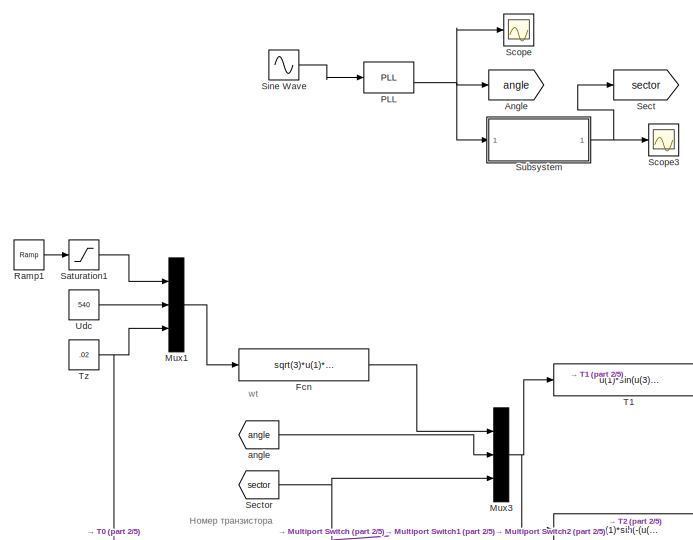
[diagram: root canvas - part 1/5, top left region]
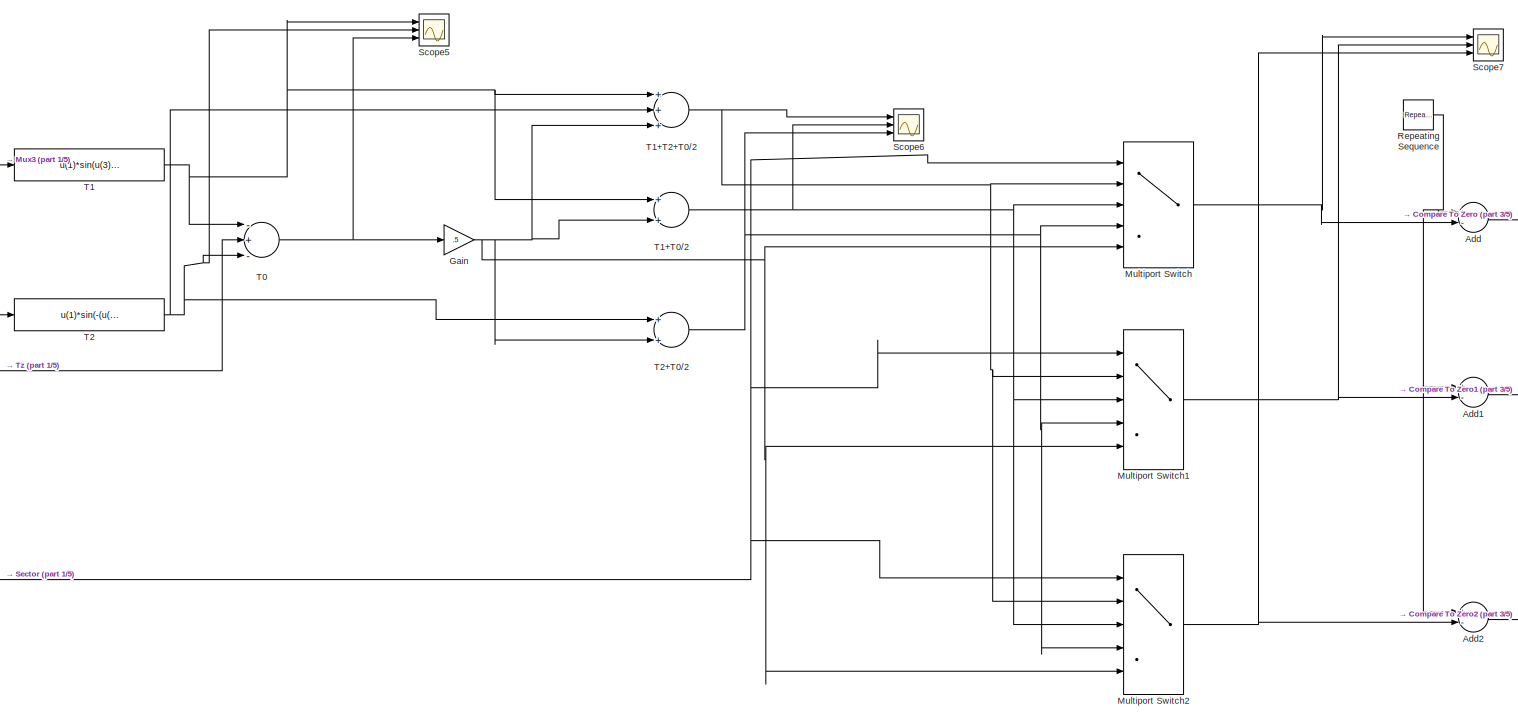
[diagram: root canvas - part 2/5, top center region]
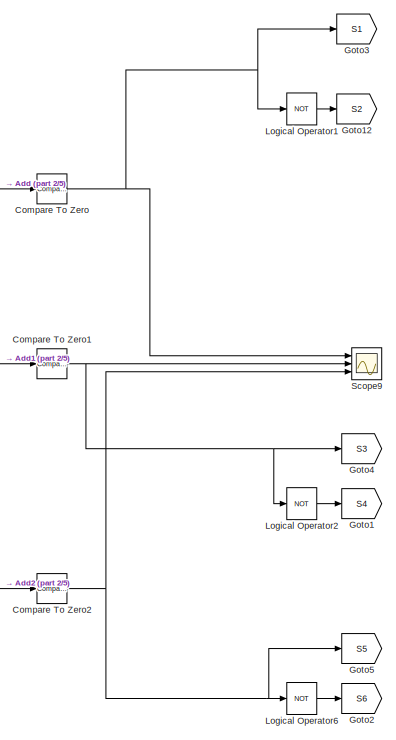
[diagram: root canvas - part 3/5, top right region]
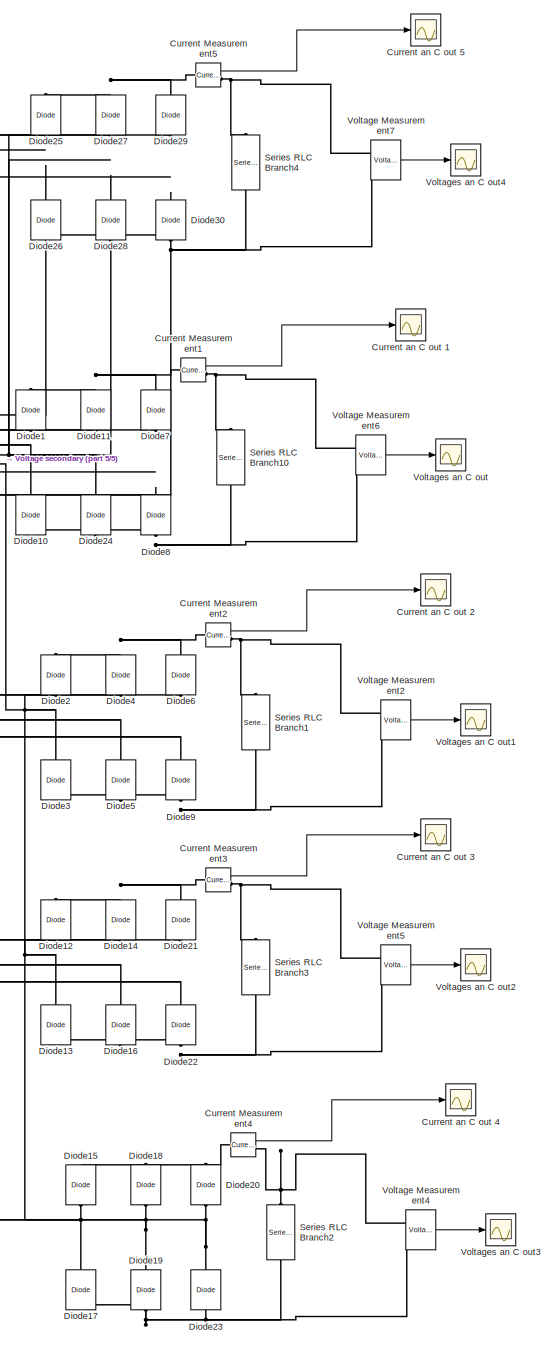
[diagram: root canvas - part 4/5, bottom right region]
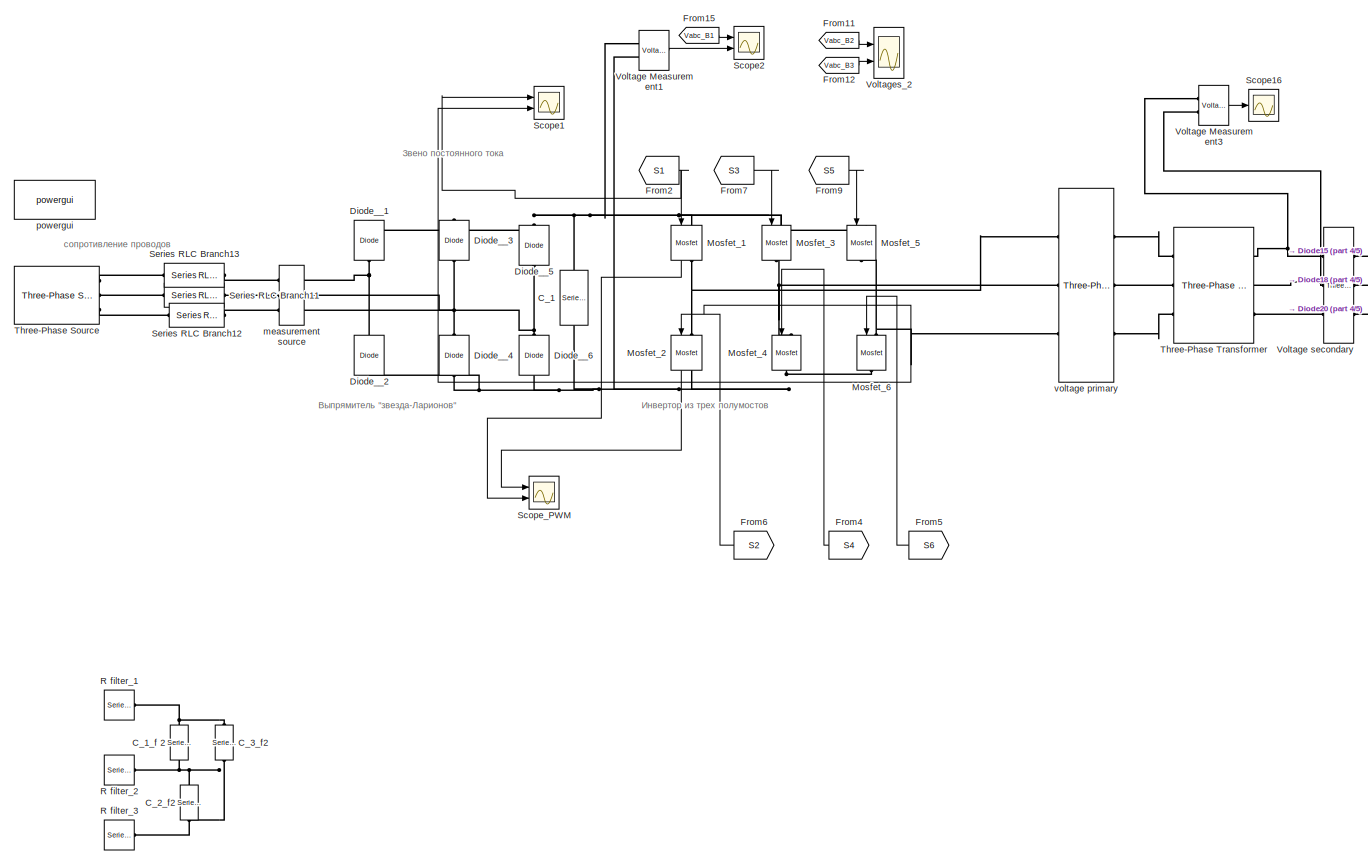
[diagram: root canvas - part 5/5, bottom center region]
MODEL slx_545048bfb73f
KIND model
CONFIG AbsTol = auto
CONFIG EnableMultiTasking = off
CONFIG FixedStep = auto
CONFIG MaxStep = 0.01
CONFIG MinStep = auto
CONFIG RelTol = 1e-3
CONFIG SampleTimeConstraint = Unconstrained
CONFIG Solver = VariableStepAuto
CONFIG SolverName = VariableStepAuto
CONFIG StartTime = 0.0
CONFIG StopTime = 5
BLOCK [Sum] Add
  InputSameDT = off
  Inputs = +-
  OutDataTypeStr = Inherit: Inherit via internal rule
  Ports = [2, 1]
  SaturateOnIntegerOverflow = off
BLOCK [Sum] Add1
  InputSameDT = off
  Inputs = +-
  OutDataTypeStr = Inherit: Inherit via internal rule
  Ports = [2, 1]
  SaturateOnIntegerOverflow = off
BLOCK [Sum] Add2
  InputSameDT = off
  Inputs = +-
  OutDataTypeStr = Inherit: Inherit via internal rule
  Ports = [2, 1]
  SaturateOnIntegerOverflow = off
BLOCK [Goto] Angle
  GotoTag = angle
BLOCK [Reference] C_1  REF=powerlib/Elements/Series RLC Branch
  Ports = [0, 0, 0, 0, 0, 1, 1]
  SourceBlock = powerlib/Elements/Series RLC Branch
  SourceProductBaseCode = PS
  SourceProductName = Simscape Power Systems
  SourceType = Series RLC Branch
BLOCK [Reference] C_1_f 2  REF=powerlib/Elements/Series RLC Branch
  Commented = on
  Ports = [0, 0, 0, 0, 0, 1, 1]
  SourceBlock = powerlib/Elements/Series RLC Branch
  SourceProductBaseCode = PS
  SourceProductName = Simscape Power Systems
  SourceType = Series RLC Branch
BLOCK [Reference] C_2_f2  REF=powerlib/Elements/Series RLC Branch
  Commented = on
  Ports = [0, 0, 0, 0, 0, 1, 1]
  SourceBlock = powerlib/Elements/Series RLC Branch
  SourceProductBaseCode = PS
  SourceProductName = Simscape Power Systems
  SourceType = Series RLC Branch
BLOCK [Reference] C_3_f2  REF=powerlib/Elements/Series RLC Branch
  Commented = on
  Ports = [0, 0, 0, 0, 0, 1, 1]
  SourceBlock = powerlib/Elements/Series RLC Branch
  SourceProductBaseCode = PS
  SourceProductName = Simscape Power Systems
  SourceType = Series RLC Branch
BLOCK [Reference] Compare To Zero  REF=simulink/Logic and Bit
Operations/Compare
To Zero
  Ports = [1, 1]
  SourceBlock = simulink/Logic and Bit\nOperations/Compare\nTo Zero
  SourceProductBaseCode = SL
  SourceProductName = Simulink
  SourceType = Compare To Zero
BLOCK [Reference] Compare To Zero1  REF=simulink/Logic and Bit
Operations/Compare
To Zero
  Ports = [1, 1]
  SourceBlock = simulink/Logic and Bit\nOperations/Compare\nTo Zero
  SourceProductBaseCode = SL
  SourceProductName = Simulink
  SourceType = Compare To Zero
BLOCK [Reference] Compare To Zero2  REF=simulink/Logic and Bit
Operations/Compare
To Zero
  Ports = [1, 1]
  SourceBlock = simulink/Logic and Bit\nOperations/Compare\nTo Zero
  SourceProductBaseCode = SL
  SourceProductName = Simulink
  SourceType = Compare To Zero
BLOCK [Reference] Current Measurement1  REF=powerlib/Measurements/Current Measurement
  Ports = [0, 1, 0, 0, 0, 1, 1]
  SourceBlock = powerlib/Measurements/Current Measurement
  SourceProductBaseCode = PS
  SourceProductName = Simscape Power Systems
  SourceType = Current Measurement
  UserDataPersistent = on
BLOCK [Reference] Current Measurement2  REF=powerlib/Measurements/Current Measurement
  Ports = [0, 1, 0, 0, 0, 1, 1]
  SourceBlock = powerlib/Measurements/Current Measurement
  SourceProductBaseCode = PS
  SourceProductName = Simscape Power Systems
  SourceType = Current Measurement
  UserDataPersistent = on
BLOCK [Reference] Current Measurement3  REF=powerlib/Measurements/Current Measurement
  Ports = [0, 1, 0, 0, 0, 1, 1]
  SourceBlock = powerlib/Measurements/Current Measurement
  SourceProductBaseCode = PS
  SourceProductName = Simscape Power Systems
  SourceType = Current Measurement
  UserDataPersistent = on
BLOCK [Reference] Current Measurement4  REF=powerlib/Measurements/Current Measurement
  Ports = [0, 1, 0, 0, 0, 1, 1]
  SourceBlock = powerlib/Measurements/Current Measurement
  SourceProductBaseCode = PS
  SourceProductName = Simscape Power Systems
  SourceType = Current Measurement
  UserDataPersistent = on
BLOCK [Reference] Current Measurement5  REF=powerlib/Measurements/Current Measurement
  Ports = [0, 1, 0, 0, 0, 1, 1]
  SourceBlock = powerlib/Measurements/Current Measurement
  SourceProductBaseCode = PS
  SourceProductName = Simscape Power Systems
  SourceType = Current Measurement
  UserDataPersistent = on
BLOCK [Scope] Current an C out 1
  Floating = off
  NumInputPorts = 1
  Ports = [1]
  ScopeSpecificationString = Simulink.scopes.TimeScopeBlockCfg('CurrentConfiguration', extmgr.ConfigurationSet(extmgr.Configuration('Core','General UI',true),extmgr.Configuration('Core','Source UI',true),extmgr.Configuration('Sources','WiredSimulink',true,'DataLoggingVariableName','ScopeData1'),extmgr.Configuration('Visuals','Time Domain',true,'SerializedDisplays',{struct('MinYLimReal','-0.74535','MaxYLimReal','6.7078','YLabe...<+1446ch>
BLOCK [Scope] Current an C out 2
  Floating = off
  NumInputPorts = 1
  Ports = [1]
  ScopeSpecificationString = Simulink.scopes.TimeScopeBlockCfg('CurrentConfiguration', extmgr.ConfigurationSet(extmgr.Configuration('Core','General UI',true),extmgr.Configuration('Core','Source UI',true),extmgr.Configuration('Sources','WiredSimulink',true,'DataLoggingVariableName','ScopeData2'),extmgr.Configuration('Visuals','Time Domain',true,'SerializedDisplays',{struct('MinYLimReal','-0.76683','MaxYLimReal','7.03002','YLab...<+1450ch>
BLOCK [Scope] Current an C out 3
  Floating = off
  NumInputPorts = 1
  Ports = [1]
  ScopeSpecificationString = Simulink.scopes.TimeScopeBlockCfg('CurrentConfiguration', extmgr.ConfigurationSet(extmgr.Configuration('Core','General UI',true),extmgr.Configuration('Core','Source UI',true),extmgr.Configuration('Sources','WiredSimulink',true,'DataLoggingVariableName','ScopeData4'),extmgr.Configuration('Visuals','Time Domain',true,'SerializedDisplays',{struct('MinYLimReal','-2.56938','MaxYLimReal','23.12202','YLa...<+1480ch>
BLOCK [Scope] Current an C out 4
  Floating = off
  NumInputPorts = 1
  Ports = [1]
  ScopeSpecificationString = Simulink.scopes.TimeScopeBlockCfg('CurrentConfiguration', extmgr.ConfigurationSet(extmgr.Configuration('Core','General UI',true),extmgr.Configuration('Core','Source UI',true),extmgr.Configuration('Sources','WiredSimulink',true,'DataLoggingVariableName','ScopeData5'),extmgr.Configuration('Visuals','Time Domain',true,'SerializedDisplays',{struct('MinYLimReal','-2.56938','MaxYLimReal','23.12202','YLa...<+1480ch>
BLOCK [Scope] Current an C out 5
  Floating = off
  NumInputPorts = 1
  Ports = [1]
  ScopeSpecificationString = Simulink.scopes.TimeScopeBlockCfg('CurrentConfiguration', extmgr.ConfigurationSet(extmgr.Configuration('Core','General UI',true),extmgr.Configuration('Core','Source UI',true),extmgr.Configuration('Sources','WiredSimulink',true,'DataLoggingVariableName','ScopeData8'),extmgr.Configuration('Visuals','Time Domain',true,'SerializedDisplays',{struct('MinYLimReal','-2.56938','MaxYLimReal','23.12202','YLa...<+1480ch>
BLOCK [Reference] Diode1  REF=powerlib/Power
Electronics/Diode
  Ports = [0, 0, 0, 0, 0, 1, 1]
  SourceBlock = powerlib/Power\nElectronics/Diode
  SourceProductBaseCode = PS
  SourceProductName = Simscape Power Systems
  SourceType = Diode
BLOCK [Reference] Diode10  REF=powerlib/Power
Electronics/Diode
  Ports = [0, 0, 0, 0, 0, 1, 1]
  SourceBlock = powerlib/Power\nElectronics/Diode
  SourceProductBaseCode = PS
  SourceProductName = Simscape Power Systems
  SourceType = Diode
BLOCK [Reference] Diode11  REF=powerlib/Power
Electronics/Diode
  Ports = [0, 0, 0, 0, 0, 1, 1]
  SourceBlock = powerlib/Power\nElectronics/Diode
  SourceProductBaseCode = PS
  SourceProductName = Simscape Power Systems
  SourceType = Diode
BLOCK [Reference] Diode12  REF=powerlib/Power
Electronics/Diode
  Ports = [0, 0, 0, 0, 0, 1, 1]
  SourceBlock = powerlib/Power\nElectronics/Diode
  SourceProductBaseCode = PS
  SourceProductName = Simscape Power Systems
  SourceType = Diode
BLOCK [Reference] Diode13  REF=powerlib/Power
Electronics/Diode
  Ports = [0, 0, 0, 0, 0, 1, 1]
  SourceBlock = powerlib/Power\nElectronics/Diode
  SourceProductBaseCode = PS
  SourceProductName = Simscape Power Systems
  SourceType = Diode
BLOCK [Reference] Diode14  REF=powerlib/Power
Electronics/Diode
  Ports = [0, 0, 0, 0, 0, 1, 1]
  SourceBlock = powerlib/Power\nElectronics/Diode
  SourceProductBaseCode = PS
  SourceProductName = Simscape Power Systems
  SourceType = Diode
BLOCK [Reference] Diode15  REF=powerlib/Power
Electronics/Diode
  Ports = [0, 0, 0, 0, 0, 1, 1]
  SourceBlock = powerlib/Power\nElectronics/Diode
  SourceProductBaseCode = PS
  SourceProductName = Simscape Power Systems
  SourceType = Diode
BLOCK [Reference] Diode16  REF=powerlib/Power
Electronics/Diode
  Ports = [0, 0, 0, 0, 0, 1, 1]
  SourceBlock = powerlib/Power\nElectronics/Diode
  SourceProductBaseCode = PS
  SourceProductName = Simscape Power Systems
  SourceType = Diode
BLOCK [Reference] Diode17  REF=powerlib/Power
Electronics/Diode
  Ports = [0, 0, 0, 0, 0, 1, 1]
  SourceBlock = powerlib/Power\nElectronics/Diode
  SourceProductBaseCode = PS
  SourceProductName = Simscape Power Systems
  SourceType = Diode
BLOCK [Reference] Diode18  REF=powerlib/Power
Electronics/Diode
  Ports = [0, 0, 0, 0, 0, 1, 1]
  SourceBlock = powerlib/Power\nElectronics/Diode
  SourceProductBaseCode = PS
  SourceProductName = Simscape Power Systems
  SourceType = Diode
BLOCK [Reference] Diode19  REF=powerlib/Power
Electronics/Diode
  Ports = [0, 0, 0, 0, 0, 1, 1]
  SourceBlock = powerlib/Power\nElectronics/Diode
  SourceProductBaseCode = PS
  SourceProductName = Simscape Power Systems
  SourceType = Diode
BLOCK [Reference] Diode2  REF=powerlib/Power
Electronics/Diode
  Ports = [0, 0, 0, 0, 0, 1, 1]
  SourceBlock = powerlib/Power\nElectronics/Diode
  SourceProductBaseCode = PS
  SourceProductName = Simscape Power Systems
  SourceType = Diode
BLOCK [Reference] Diode20  REF=powerlib/Power
Electronics/Diode
  Ports = [0, 0, 0, 0, 0, 1, 1]
  SourceBlock = powerlib/Power\nElectronics/Diode
  SourceProductBaseCode = PS
  SourceProductName = Simscape Power Systems
  SourceType = Diode
BLOCK [Reference] Diode21  REF=powerlib/Power
Electronics/Diode
  Ports = [0, 0, 0, 0, 0, 1, 1]
  SourceBlock = powerlib/Power\nElectronics/Diode
  SourceProductBaseCode = PS
  SourceProductName = Simscape Power Systems
  SourceType = Diode
BLOCK [Reference] Diode22  REF=powerlib/Power
Electronics/Diode
  Ports = [0, 0, 0, 0, 0, 1, 1]
  SourceBlock = powerlib/Power\nElectronics/Diode
  SourceProductBaseCode = PS
  SourceProductName = Simscape Power Systems
  SourceType = Diode
BLOCK [Reference] Diode23  REF=powerlib/Power
Electronics/Diode
  Ports = [0, 0, 0, 0, 0, 1, 1]
  SourceBlock = powerlib/Power\nElectronics/Diode
  SourceProductBaseCode = PS
  SourceProductName = Simscape Power Systems
  SourceType = Diode
BLOCK [Reference] Diode24  REF=powerlib/Power
Electronics/Diode
  Ports = [0, 0, 0, 0, 0, 1, 1]
  SourceBlock = powerlib/Power\nElectronics/Diode
  SourceProductBaseCode = PS
  SourceProductName = Simscape Power Systems
  SourceType = Diode
BLOCK [Reference] Diode25  REF=powerlib/Power
Electronics/Diode
  Ports = [0, 0, 0, 0, 0, 1, 1]
  SourceBlock = powerlib/Power\nElectronics/Diode
  SourceProductBaseCode = PS
  SourceProductName = Simscape Power Systems
  SourceType = Diode
BLOCK [Reference] Diode26  REF=powerlib/Power
Electronics/Diode
  Ports = [0, 0, 0, 0, 0, 1, 1]
  SourceBlock = powerlib/Power\nElectronics/Diode
  SourceProductBaseCode = PS
  SourceProductName = Simscape Power Systems
  SourceType = Diode
BLOCK [Reference] Diode27  REF=powerlib/Power
Electronics/Diode
  Ports = [0, 0, 0, 0, 0, 1, 1]
  SourceBlock = powerlib/Power\nElectronics/Diode
  SourceProductBaseCode = PS
  SourceProductName = Simscape Power Systems
  SourceType = Diode
BLOCK [Reference] Diode28  REF=powerlib/Power
Electronics/Diode
  Ports = [0, 0, 0, 0, 0, 1, 1]
  SourceBlock = powerlib/Power\nElectronics/Diode
  SourceProductBaseCode = PS
  SourceProductName = Simscape Power Systems
  SourceType = Diode
BLOCK [Reference] Diode29  REF=powerlib/Power
Electronics/Diode
  Ports = [0, 0, 0, 0, 0, 1, 1]
  SourceBlock = powerlib/Power\nElectronics/Diode
  SourceProductBaseCode = PS
  SourceProductName = Simscape Power Systems
  SourceType = Diode
BLOCK [Reference] Diode3  REF=powerlib/Power
Electronics/Diode
  Ports = [0, 0, 0, 0, 0, 1, 1]
  SourceBlock = powerlib/Power\nElectronics/Diode
  SourceProductBaseCode = PS
  SourceProductName = Simscape Power Systems
  SourceType = Diode
BLOCK [Reference] Diode30  REF=powerlib/Power
Electronics/Diode
  Ports = [0, 0, 0, 0, 0, 1, 1]
  SourceBlock = powerlib/Power\nElectronics/Diode
  SourceProductBaseCode = PS
  SourceProductName = Simscape Power Systems
  SourceType = Diode
BLOCK [Reference] Diode4  REF=powerlib/Power
Electronics/Diode
  Ports = [0, 0, 0, 0, 0, 1, 1]
  SourceBlock = powerlib/Power\nElectronics/Diode
  SourceProductBaseCode = PS
  SourceProductName = Simscape Power Systems
  SourceType = Diode
BLOCK [Reference] Diode5  REF=powerlib/Power
Electronics/Diode
  Ports = [0, 0, 0, 0, 0, 1, 1]
  SourceBlock = powerlib/Power\nElectronics/Diode
  SourceProductBaseCode = PS
  SourceProductName = Simscape Power Systems
  SourceType = Diode
BLOCK [Reference] Diode6  REF=powerlib/Power
Electronics/Diode
  Ports = [0, 0, 0, 0, 0, 1, 1]
  SourceBlock = powerlib/Power\nElectronics/Diode
  SourceProductBaseCode = PS
  SourceProductName = Simscape Power Systems
  SourceType = Diode
BLOCK [Reference] Diode7  REF=powerlib/Power
Electronics/Diode
  Ports = [0, 0, 0, 0, 0, 1, 1]
  SourceBlock = powerlib/Power\nElectronics/Diode
  SourceProductBaseCode = PS
  SourceProductName = Simscape Power Systems
  SourceType = Diode
BLOCK [Reference] Diode8  REF=powerlib/Power
Electronics/Diode
  Ports = [0, 0, 0, 0, 0, 1, 1]
  SourceBlock = powerlib/Power\nElectronics/Diode
  SourceProductBaseCode = PS
  SourceProductName = Simscape Power Systems
  SourceType = Diode
BLOCK [Reference] Diode9  REF=powerlib/Power
Electronics/Diode
  Ports = [0, 0, 0, 0, 0, 1, 1]
  SourceBlock = powerlib/Power\nElectronics/Diode
  SourceProductBaseCode = PS
  SourceProductName = Simscape Power Systems
  SourceType = Diode
BLOCK [Reference] Diode__1  REF=powerlib/Power
Electronics/Diode
  Ports = [0, 0, 0, 0, 0, 1, 1]
  SourceBlock = powerlib/Power\nElectronics/Diode
  SourceProductBaseCode = PS
  SourceProductName = Simscape Power Systems
  SourceType = Diode
BLOCK [Reference] Diode__2  REF=powerlib/Power
Electronics/Diode
  Ports = [0, 0, 0, 0, 0, 1, 1]
  SourceBlock = powerlib/Power\nElectronics/Diode
  SourceProductBaseCode = PS
  SourceProductName = Simscape Power Systems
  SourceType = Diode
BLOCK [Reference] Diode__3  REF=powerlib/Power
Electronics/Diode
  Ports = [0, 0, 0, 0, 0, 1, 1]
  SourceBlock = powerlib/Power\nElectronics/Diode
  SourceProductBaseCode = PS
  SourceProductName = Simscape Power Systems
  SourceType = Diode
BLOCK [Reference] Diode__4  REF=powerlib/Power
Electronics/Diode
  Ports = [0, 0, 0, 0, 0, 1, 1]
  SourceBlock = powerlib/Power\nElectronics/Diode
  SourceProductBaseCode = PS
  SourceProductName = Simscape Power Systems
  SourceType = Diode
BLOCK [Reference] Diode__5  REF=powerlib/Power
Electronics/Diode
  Ports = [0, 0, 0, 0, 0, 1, 1]
  SourceBlock = powerlib/Power\nElectronics/Diode
  SourceProductBaseCode = PS
  SourceProductName = Simscape Power Systems
  SourceType = Diode
BLOCK [Reference] Diode__6  REF=powerlib/Power
Electronics/Diode
  Ports = [0, 0, 0, 0, 0, 1, 1]
  SourceBlock = powerlib/Power\nElectronics/Diode
  SourceProductBaseCode = PS
  SourceProductName = Simscape Power Systems
  SourceType = Diode
BLOCK [Fcn] Fcn
  Expr = sqrt(3)*u(1)*u(3)/u(2)
BLOCK [From] From11
  GotoTag = Vabc_B2
  TagVisibility = global
BLOCK [From] From12
  GotoTag = Vabc_B3
  TagVisibility = global
BLOCK [From] From15
  GotoTag = Vabc_B1
  TagVisibility = global
BLOCK [From] From2
  GotoTag = S1
BLOCK [From] From4
  GotoTag = S4
BLOCK [From] From5
  GotoTag = S6
BLOCK [From] From6
  GotoTag = S2
BLOCK [From] From7
  GotoTag = S3
BLOCK [From] From9
  GotoTag = S5
BLOCK [Gain] Gain
  Gain = .5
  OutDataTypeStr = Inherit: Inherit via internal rule
  ParamDataTypeStr = Inherit: Inherit via internal rule
  SaturateOnIntegerOverflow = off
BLOCK [Goto] Goto1
  GotoTag = S4
BLOCK [Goto] Goto12
  GotoTag = S2
BLOCK [Goto] Goto2
  GotoTag = S6
BLOCK [Goto] Goto3
  GotoTag = S1
BLOCK [Goto] Goto4
  GotoTag = S3
BLOCK [Goto] Goto5
  GotoTag = S5
BLOCK [Logic] Logical Operator1
  AllPortsSameDT = off
  Operator = NOT
  OutDataTypeStr = boolean
  Ports = [1, 1]
BLOCK [Logic] Logical Operator2
  AllPortsSameDT = off
  Operator = NOT
  OutDataTypeStr = boolean
  Ports = [1, 1]
BLOCK [Logic] Logical Operator6
  AllPortsSameDT = off
  Operator = NOT
  OutDataTypeStr = boolean
  Ports = [1, 1]
BLOCK [Reference] Mosfet_1  REF=powerlib/Power
Electronics/Mosfet
  Ports = [1, 1, 0, 0, 0, 1, 1]
  SourceBlock = powerlib/Power\nElectronics/Mosfet
  SourceProductBaseCode = PS
  SourceProductName = Simscape Power Systems
  SourceType = Mosfet
BLOCK [Reference] Mosfet_2  REF=powerlib/Power
Electronics/Mosfet
  Ports = [1, 1, 0, 0, 0, 1, 1]
  SourceBlock = powerlib/Power\nElectronics/Mosfet
  SourceProductBaseCode = PS
  SourceProductName = Simscape Power Systems
  SourceType = Mosfet
BLOCK [Reference] Mosfet_3  REF=powerlib/Power
Electronics/Mosfet
  Ports = [1, 0, 0, 0, 0, 1, 1]
  SourceBlock = powerlib/Power\nElectronics/Mosfet
  SourceProductBaseCode = PS
  SourceProductName = Simscape Power Systems
  SourceType = Mosfet
BLOCK [Reference] Mosfet_4  REF=powerlib/Power
Electronics/Mosfet
  Ports = [1, 0, 0, 0, 0, 1, 1]
  SourceBlock = powerlib/Power\nElectronics/Mosfet
  SourceProductBaseCode = PS
  SourceProductName = Simscape Power Systems
  SourceType = Mosfet
BLOCK [Reference] Mosfet_5  REF=powerlib/Power
Electronics/Mosfet
  Ports = [1, 0, 0, 0, 0, 1, 1]
  SourceBlock = powerlib/Power\nElectronics/Mosfet
  SourceProductBaseCode = PS
  SourceProductName = Simscape Power Systems
  SourceType = Mosfet
BLOCK [Reference] Mosfet_6  REF=powerlib/Power
Electronics/Mosfet
  Ports = [1, 0, 0, 0, 0, 1, 1]
  SourceBlock = powerlib/Power\nElectronics/Mosfet
  SourceProductBaseCode = PS
  SourceProductName = Simscape Power Systems
  SourceType = Mosfet
BLOCK [MultiPortSwitch] Multiport Switch
  DataPortIndices = {[1,6],2,5,[3,4]}
  DataPortOrder = Specify indices
  DiagnosticForDefault = Warning
  InputSameDT = off
  Inputs = 4
  Ports = [5, 1]
  SaturateOnIntegerOverflow = off
BLOCK [MultiPortSwitch] Multiport Switch1
  DataPortIndices = {[2,3],4,1,[5,6]}
  DataPortOrder = Specify indices
  DiagnosticForDefault = Warning
  InputSameDT = off
  Inputs = 4
  Ports = [5, 1]
  SaturateOnIntegerOverflow = off
BLOCK [MultiPortSwitch] Multiport Switch2
  DataPortIndices = {[4,5],6,3,[1,2]}
  DataPortOrder = Specify indices
  DiagnosticForDefault = Warning
  InputSameDT = off
  Inputs = 4
  Ports = [5, 1]
  SaturateOnIntegerOverflow = off
BLOCK [Mux] Mux1
  DisplayOption = bar
  Inputs = 3
  Ports = [3, 1]
BLOCK [Mux] Mux3
  DisplayOption = bar
  Inputs = 3
  Ports = [3, 1]
BLOCK [Reference] PLL  REF=powerlib_meascontrol/PLL/PLL
  Ports = [1, 2]
  SourceBlock = powerlib_meascontrol/PLL/PLL
  SourceProductBaseCode = PS
  SourceProductName = Simscape Power Systems
  SourceType = PLL
BLOCK [Reference] R filter_1  REF=powerlib/Elements/Series RLC Branch
  Commented = on
  Ports = [0, 0, 0, 0, 0, 1, 1]
  SourceBlock = powerlib/Elements/Series RLC Branch
  SourceProductBaseCode = PS
  SourceProductName = Simscape Power Systems
  SourceType = Series RLC Branch
BLOCK [Reference] R filter_2  REF=powerlib/Elements/Series RLC Branch
  Commented = on
  Ports = [0, 0, 0, 0, 0, 1, 1]
  SourceBlock = powerlib/Elements/Series RLC Branch
  SourceProductBaseCode = PS
  SourceProductName = Simscape Power Systems
  SourceType = Series RLC Branch
BLOCK [Reference] R filter_3  REF=powerlib/Elements/Series RLC Branch
  Commented = on
  Ports = [0, 0, 0, 0, 0, 1, 1]
  SourceBlock = powerlib/Elements/Series RLC Branch
  SourceProductBaseCode = PS
  SourceProductName = Simscape Power Systems
  SourceType = Series RLC Branch
BLOCK [Reference] Ramp1  REF=simulink/Sources/Ramp
  Ports = [0, 1]
  SourceBlock = simulink/Sources/Ramp
  SourceProductBaseCode = SL
  SourceProductName = Simulink
  SourceType = Ramp
BLOCK [Reference] Repeating Sequence  REF=simulink/Sources/Repeating
Sequence
  Ports = [0, 1]
  SourceBlock = simulink/Sources/Repeating\nSequence
  SourceProductBaseCode = SL
  SourceProductName = Simulink
  SourceType = Repeating table
BLOCK [Saturate] Saturation1
  InputPortMap = u0
  Ports = [1, 1]
  UpperLimit = 220
BLOCK [Scope] Scope
  Floating = off
  NumInputPorts = 1
  Ports = [1]
  ScopeSpecificationString = Simulink.scopes.TimeScopeBlockCfg('CurrentConfiguration', extmgr.ConfigurationSet(extmgr.Configuration('Core','General UI',true),extmgr.Configuration('Core','Source UI',true),extmgr.Configuration('Sources','WiredSimulink',true,'DataLoggingVariableName','ScopeData6'),extmgr.Configuration('Visuals','Time Domain',true,'SerializedDisplays',{struct('MinYLimReal','-0.7854','MaxYLimReal','7.06858','YLabe...<+1406ch>
BLOCK [Scope] Scope1
  Floating = off
  NumInputPorts = 2
  Ports = [2]
  ScopeSpecificationString = Simulink.scopes.TimeScopeBlockCfg('CurrentConfiguration', extmgr.ConfigurationSet(extmgr.Configuration('Core','General UI',true),extmgr.Configuration('Core','Source UI',true),extmgr.Configuration('Sources','WiredSimulink',true,'DataLoggingVariableName','ScopeData1'),extmgr.Configuration('Visuals','Time Domain',true,'SerializedDisplays',{struct('MinYLimReal','-0.12601','MaxYLimReal','1.12399','YLab...<+2056ch>
BLOCK [Scope] Scope16
  Floating = off
  NumInputPorts = 1
  Ports = [1]
  ScopeSpecificationString = Simulink.scopes.TimeScopeBlockCfg('CurrentConfiguration', extmgr.ConfigurationSet(extmgr.Configuration('Core','General UI',true),extmgr.Configuration('Core','Source UI',true),extmgr.Configuration('Sources','WiredSimulink',true,'DataLoggingVariableName','ScopeData5'),extmgr.Configuration('Visuals','Time Domain',true,'SerializedDisplays',{struct('MinYLimReal','-826.29589','MaxYLimReal','833.49632','...<+1466ch>
BLOCK [Scope] Scope2
  Floating = off
  NumInputPorts = 2
  Ports = [2]
  ScopeSpecificationString = Simulink.scopes.TimeScopeBlockCfg('CurrentConfiguration', extmgr.ConfigurationSet(extmgr.Configuration('Core','General UI',true),extmgr.Configuration('Core','Source UI',true),extmgr.Configuration('Sources','WiredSimulink',true,'DataLoggingVariableName','ScopeData7'),extmgr.Configuration('Visuals','Time Domain',true,'SerializedDisplays',{struct('MinYLimReal','-588.66957','MaxYLimReal','661.72946','...<+2078ch>
BLOCK [Scope] Scope3
  Floating = off
  NumInputPorts = 1
  Ports = [1]
  ScopeSpecificationString = Simulink.scopes.TimeScopeBlockCfg('CurrentConfiguration', extmgr.ConfigurationSet(extmgr.Configuration('Core','General UI',true),extmgr.Configuration('Core','Source UI',true),extmgr.Configuration('Sources','WiredSimulink',true,'DataLoggingVariableName','ScopeData10'),extmgr.Configuration('Visuals','Time Domain',true,'SerializedDisplays',{struct('MinYLimReal','0.375','MaxYLimReal','6.625','YLabelRe...<+1424ch>
BLOCK [Scope] Scope5
  Floating = off
  NumInputPorts = 3
  Ports = [3]
  ScopeSpecificationString = Simulink.scopes.TimeScopeBlockCfg('CurrentConfiguration', extmgr.ConfigurationSet(extmgr.Configuration('Core','General UI',true),extmgr.Configuration('Core','Source UI',true),extmgr.Configuration('Sources','WiredSimulink',true,'DataLoggingVariableName','ScopeData11'),extmgr.Configuration('Visuals','Time Domain',true,'SerializedDisplays',{struct('MinYLimReal','-0.00153','MaxYLimReal','0.01375','YLa...<+2722ch>
BLOCK [Scope] Scope6
  Floating = off
  NumInputPorts = 3
  Ports = [3]
  ScopeSpecificationString = Simulink.scopes.TimeScopeBlockCfg('CurrentConfiguration', extmgr.ConfigurationSet(extmgr.Configuration('Core','General UI',true),extmgr.Configuration('Core','Source UI',true),extmgr.Configuration('Sources','WiredSimulink',true,'DataLoggingVariableName','ScopeData12'),extmgr.Configuration('Visuals','Time Domain',true,'SerializedDisplays',{struct('MinYLimReal','0.01599','MaxYLimReal','0.01717','YLab...<+2735ch>
BLOCK [Scope] Scope7
  Floating = off
  NumInputPorts = 3
  Ports = [3]
  ScopeSpecificationString = Simulink.scopes.TimeScopeBlockCfg('CurrentConfiguration', extmgr.ConfigurationSet(extmgr.Configuration('Core','General UI',true),extmgr.Configuration('Core','Source UI',true),extmgr.Configuration('Sources','WiredSimulink',true,'DataLoggingVariableName','ScopeData13'),extmgr.Configuration('Visuals','Time Domain',true,'SerializedDisplays',{struct('MinYLimReal','0.00118','MaxYLimReal','0.01882','YLab...<+2762ch>
BLOCK [Scope] Scope9
  Floating = off
  NumInputPorts = 3
  Ports = [3]
  ScopeSpecificationString = Simulink.scopes.TimeScopeBlockCfg('CurrentConfiguration', extmgr.ConfigurationSet(extmgr.Configuration('Core','General UI',true),extmgr.Configuration('Core','Source UI',true),extmgr.Configuration('Sources','WiredSimulink',true,'DataLoggingVariableName','ScopeData14'),extmgr.Configuration('Visuals','Time Domain',true,'SerializedDisplays',{struct('MinYLimReal','-0.125','MaxYLimReal','1.125','YLabelR...<+2748ch>
BLOCK [Scope] Scope_PWM
  Floating = off
  NumInputPorts = 2
  Ports = [2]
  ScopeSpecificationString = Simulink.scopes.TimeScopeBlockCfg('CurrentConfiguration', extmgr.ConfigurationSet(extmgr.Configuration('Core','General UI',true),extmgr.Configuration('Core','Source UI',true),extmgr.Configuration('Sources','WiredSimulink',true),extmgr.Configuration('Visuals','Time Domain',true,'SerializedDisplays',{struct('MinYLimReal','-300.19593','MaxYLimReal','463.13983','YLabelReal','','MinYLimMag',' 0.00000',...<+2031ch>
BLOCK [Goto] Sect
  GotoTag = sector
BLOCK [From] Sector 
  GotoTag = sector
BLOCK [Reference] Series RLC Branch1  REF=powerlib/Elements/Series RLC Branch
  Ports = [0, 0, 0, 0, 0, 1, 1]
  SourceBlock = powerlib/Elements/Series RLC Branch
  SourceProductBaseCode = PS
  SourceProductName = Simscape Power Systems
  SourceType = Series RLC Branch
BLOCK [Reference] Series RLC Branch10  REF=powerlib/Elements/Series RLC Branch
  Ports = [0, 0, 0, 0, 0, 1, 1]
  SourceBlock = powerlib/Elements/Series RLC Branch
  SourceProductBaseCode = PS
  SourceProductName = Simscape Power Systems
  SourceType = Series RLC Branch
BLOCK [Reference] Series RLC Branch11  REF=powerlib/Elements/Series RLC Branch
  Ports = [0, 0, 0, 0, 0, 1, 1]
  SourceBlock = powerlib/Elements/Series RLC Branch
  SourceProductBaseCode = PS
  SourceProductName = Simscape Power Systems
  SourceType = Series RLC Branch
BLOCK [Reference] Series RLC Branch12  REF=powerlib/Elements/Series RLC Branch
  Ports = [0, 0, 0, 0, 0, 1, 1]
  SourceBlock = powerlib/Elements/Series RLC Branch
  SourceProductBaseCode = PS
  SourceProductName = Simscape Power Systems
  SourceType = Series RLC Branch
BLOCK [Reference] Series RLC Branch13  REF=powerlib/Elements/Series RLC Branch
  Ports = [0, 0, 0, 0, 0, 1, 1]
  SourceBlock = powerlib/Elements/Series RLC Branch
  SourceProductBaseCode = PS
  SourceProductName = Simscape Power Systems
  SourceType = Series RLC Branch
BLOCK [Reference] Series RLC Branch2  REF=powerlib/Elements/Series RLC Branch
  Ports = [0, 0, 0, 0, 0, 1, 1]
  SourceBlock = powerlib/Elements/Series RLC Branch
  SourceProductBaseCode = PS
  SourceProductName = Simscape Power Systems
  SourceType = Series RLC Branch
BLOCK [Reference] Series RLC Branch3  REF=powerlib/Elements/Series RLC Branch
  Ports = [0, 0, 0, 0, 0, 1, 1]
  SourceBlock = powerlib/Elements/Series RLC Branch
  SourceProductBaseCode = PS
  SourceProductName = Simscape Power Systems
  SourceType = Series RLC Branch
BLOCK [Reference] Series RLC Branch4  REF=powerlib/Elements/Series RLC Branch
  Ports = [0, 0, 0, 0, 0, 1, 1]
  SourceBlock = powerlib/Elements/Series RLC Branch
  SourceProductBaseCode = PS
  SourceProductName = Simscape Power Systems
  SourceType = Series RLC Branch
BLOCK [Sin] Sine Wave
  Frequency = 2*pi*50
  Ports = [0, 1]
  SampleTime = 0
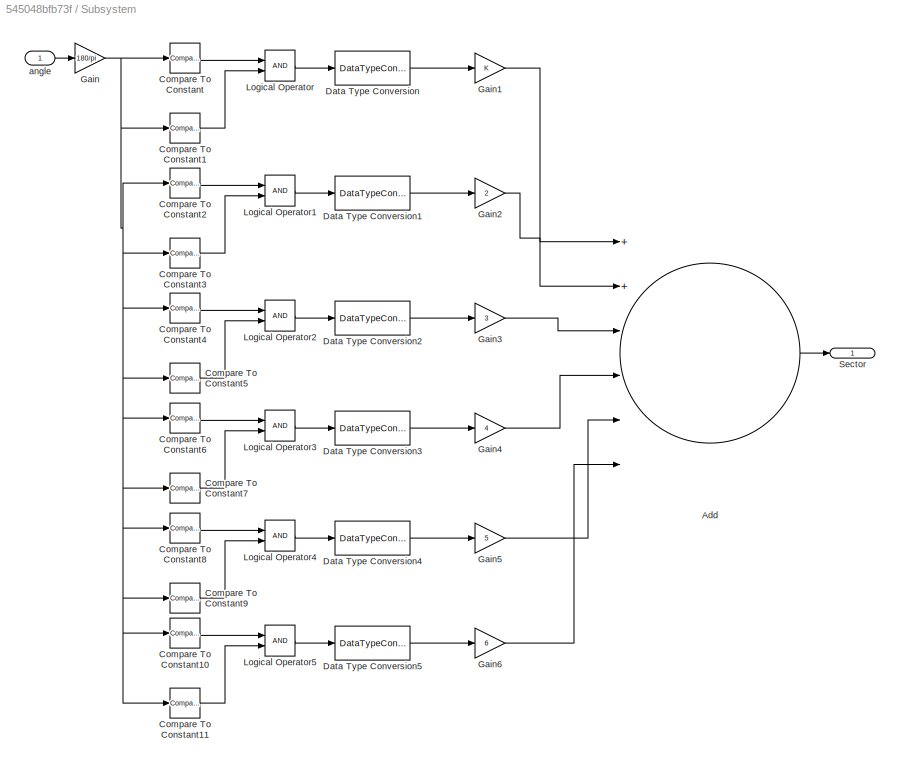
BLOCK [SubSystem] Subsystem
  Ports = [1, 1]
  RequestExecContextInheritance = off
BLOCK [Sum] Subsystem/Add
  InputSameDT = off
  Inputs = 6
  OutDataTypeStr = Inherit: Inherit via internal rule
  Ports = [6, 1]
  SaturateOnIntegerOverflow = off
BLOCK [Reference] Subsystem/Compare To Constant  REF=simulink/Logic and Bit
Operations/Compare
To Constant
  Ports = [1, 1]
  SourceBlock = simulink/Logic and Bit\nOperations/Compare\nTo Constant
  SourceProductBaseCode = SL
  SourceProductName = Simulink
  SourceType = Compare To Constant
BLOCK [Reference] Subsystem/Compare To Constant1  REF=simulink/Logic and Bit
Operations/Compare
To Constant
  Ports = [1, 1]
  SourceBlock = simulink/Logic and Bit\nOperations/Compare\nTo Constant
  SourceProductBaseCode = SL
  SourceProductName = Simulink
  SourceType = Compare To Constant
BLOCK [Reference] Subsystem/Compare To Constant10  REF=simulink/Logic and Bit
Operations/Compare
To Constant
  Ports = [1, 1]
  SourceBlock = simulink/Logic and Bit\nOperations/Compare\nTo Constant
  SourceProductBaseCode = SL
  SourceProductName = Simulink
  SourceType = Compare To Constant
BLOCK [Reference] Subsystem/Compare To Constant11  REF=simulink/Logic and Bit
Operations/Compare
To Constant
  Ports = [1, 1]
  SourceBlock = simulink/Logic and Bit\nOperations/Compare\nTo Constant
  SourceProductBaseCode = SL
  SourceProductName = Simulink
  SourceType = Compare To Constant
BLOCK [Reference] Subsystem/Compare To Constant2  REF=simulink/Logic and Bit
Operations/Compare
To Constant
  Ports = [1, 1]
  SourceBlock = simulink/Logic and Bit\nOperations/Compare\nTo Constant
  SourceProductBaseCode = SL
  SourceProductName = Simulink
  SourceType = Compare To Constant
BLOCK [Reference] Subsystem/Compare To Constant3  REF=simulink/Logic and Bit
Operations/Compare
To Constant
  Ports = [1, 1]
  SourceBlock = simulink/Logic and Bit\nOperations/Compare\nTo Constant
  SourceProductBaseCode = SL
  SourceProductName = Simulink
  SourceType = Compare To Constant
BLOCK [Reference] Subsystem/Compare To Constant4  REF=simulink/Logic and Bit
Operations/Compare
To Constant
  Ports = [1, 1]
  SourceBlock = simulink/Logic and Bit\nOperations/Compare\nTo Constant
  SourceProductBaseCode = SL
  SourceProductName = Simulink
  SourceType = Compare To Constant
BLOCK [Reference] Subsystem/Compare To Constant5  REF=simulink/Logic and Bit
Operations/Compare
To Constant
  Ports = [1, 1]
  SourceBlock = simulink/Logic and Bit\nOperations/Compare\nTo Constant
  SourceProductBaseCode = SL
  SourceProductName = Simulink
  SourceType = Compare To Constant
BLOCK [Reference] Subsystem/Compare To Constant6  REF=simulink/Logic and Bit
Operations/Compare
To Constant
  Ports = [1, 1]
  SourceBlock = simulink/Logic and Bit\nOperations/Compare\nTo Constant
  SourceProductBaseCode = SL
  SourceProductName = Simulink
  SourceType = Compare To Constant
BLOCK [Reference] Subsystem/Compare To Constant7  REF=simulink/Logic and Bit
Operations/Compare
To Constant
  Ports = [1, 1]
  SourceBlock = simulink/Logic and Bit\nOperations/Compare\nTo Constant
  SourceProductBaseCode = SL
  SourceProductName = Simulink
  SourceType = Compare To Constant
BLOCK [Reference] Subsystem/Compare To Constant8  REF=simulink/Logic and Bit
Operations/Compare
To Constant
  Ports = [1, 1]
  SourceBlock = simulink/Logic and Bit\nOperations/Compare\nTo Constant
  SourceProductBaseCode = SL
  SourceProductName = Simulink
  SourceType = Compare To Constant
BLOCK [Reference] Subsystem/Compare To Constant9  REF=simulink/Logic and Bit
Operations/Compare
To Constant
  Ports = [1, 1]
  SourceBlock = simulink/Logic and Bit\nOperations/Compare\nTo Constant
  SourceProductBaseCode = SL
  SourceProductName = Simulink
  SourceType = Compare To Constant
BLOCK [DataTypeConversion] Subsystem/Data Type Conversion
  RndMeth = Floor
  SaturateOnIntegerOverflow = off
BLOCK [DataTypeConversion] Subsystem/Data Type Conversion1
  RndMeth = Floor
  SaturateOnIntegerOverflow = off
BLOCK [DataTypeConversion] Subsystem/Data Type Conversion2
  RndMeth = Floor
  SaturateOnIntegerOverflow = off
BLOCK [DataTypeConversion] Subsystem/Data Type Conversion3
  RndMeth = Floor
  SaturateOnIntegerOverflow = off
BLOCK [DataTypeConversion] Subsystem/Data Type Conversion4
  RndMeth = Floor
  SaturateOnIntegerOverflow = off
BLOCK [DataTypeConversion] Subsystem/Data Type Conversion5
  RndMeth = Floor
  SaturateOnIntegerOverflow = off
BLOCK [Gain] Subsystem/Gain
  Gain = 180/pi
  OutDataTypeStr = Inherit: Inherit via internal rule
  ParamDataTypeStr = Inherit: Inherit via internal rule
  SaturateOnIntegerOverflow = off
BLOCK [Gain] Subsystem/Gain1
  OutDataTypeStr = Inherit: Inherit via internal rule
  ParamDataTypeStr = Inherit: Inherit via internal rule
  SaturateOnIntegerOverflow = off
BLOCK [Gain] Subsystem/Gain2
  Gain = 2
  OutDataTypeStr = Inherit: Inherit via internal rule
  ParamDataTypeStr = Inherit: Inherit via internal rule
  SaturateOnIntegerOverflow = off
BLOCK [Gain] Subsystem/Gain3
  Gain = 3
  OutDataTypeStr = Inherit: Inherit via internal rule
  ParamDataTypeStr = Inherit: Inherit via internal rule
  SaturateOnIntegerOverflow = off
BLOCK [Gain] Subsystem/Gain4
  Gain = 4
  OutDataTypeStr = Inherit: Inherit via internal rule
  ParamDataTypeStr = Inherit: Inherit via internal rule
  SaturateOnIntegerOverflow = off
BLOCK [Gain] Subsystem/Gain5
  Gain = 5
  OutDataTypeStr = Inherit: Inherit via internal rule
  ParamDataTypeStr = Inherit: Inherit via internal rule
  SaturateOnIntegerOverflow = off
BLOCK [Gain] Subsystem/Gain6
  Gain = 6
  OutDataTypeStr = Inherit: Inherit via internal rule
  ParamDataTypeStr = Inherit: Inherit via internal rule
  SaturateOnIntegerOverflow = off
BLOCK [Logic] Subsystem/Logical Operator
  AllPortsSameDT = off
  OutDataTypeStr = boolean
  Ports = [2, 1]
BLOCK [Logic] Subsystem/Logical Operator1
  AllPortsSameDT = off
  OutDataTypeStr = boolean
  Ports = [2, 1]
BLOCK [Logic] Subsystem/Logical Operator2
  AllPortsSameDT = off
  OutDataTypeStr = boolean
  Ports = [2, 1]
BLOCK [Logic] Subsystem/Logical Operator3
  AllPortsSameDT = off
  OutDataTypeStr = boolean
  Ports = [2, 1]
BLOCK [Logic] Subsystem/Logical Operator4
  AllPortsSameDT = off
  OutDataTypeStr = boolean
  Ports = [2, 1]
BLOCK [Logic] Subsystem/Logical Operator5
  AllPortsSameDT = off
  OutDataTypeStr = boolean
  Ports = [2, 1]
BLOCK [Outport] Subsystem/Sector
  IconDisplay = Port number
BLOCK [Inport] Subsystem/angle
  IconDisplay = Port number
BLOCK [Sum] T0
  InputSameDT = off
  Inputs = -+-
  OutDataTypeStr = Inherit: Inherit via internal rule
  Ports = [3, 1]
  SaturateOnIntegerOverflow = off
BLOCK [Fcn] T1
  Expr = u(1)*sin(u(3)*pi/3-u(2))
BLOCK [Sum] T1+T0//2
  InputSameDT = off
  Inputs = 2
  OutDataTypeStr = Inherit: Inherit via internal rule
  Ports = [2, 1]
  SaturateOnIntegerOverflow = off
BLOCK [Sum] T1+T2+T0//2
  InputSameDT = off
  Inputs = +++
  OutDataTypeStr = Inherit: Inherit via internal rule
  Ports = [3, 1]
  SaturateOnIntegerOverflow = off
BLOCK [Fcn] T2
  Expr = u(1)*sin(-(u(3)-1)*pi/3+u(2))
BLOCK [Sum] T2+T0//2
  InputSameDT = off
  Inputs = 2
  OutDataTypeStr = Inherit: Inherit via internal rule
  Ports = [2, 1]
  SaturateOnIntegerOverflow = off
BLOCK [Reference] Three-Phase Source  REF=powerlib/Electrical
Sources/Three-Phase Source
  Ports = [0, 0, 0, 0, 0, 0, 3]
  SourceBlock = powerlib/Electrical\nSources/Three-Phase Source
  SourceProductBaseCode = PS
  SourceProductName = Simscape Power Systems
  SourceType = Three-Phase Source
BLOCK [Reference] Three-Phase Transformer  REF=powerlib/Elements/Three-Phase
Transformer
(Two Windings)
  Ports = [0, 0, 0, 0, 0, 3, 3]
  SourceBlock = powerlib/Elements/Three-Phase\nTransformer\n(Two Windings)
  SourceProductBaseCode = PS
  SourceProductName = Simscape Power Systems
  SourceType = Three-Phase Transformer (Two Windings)
BLOCK [Constant] Tz
  Value = .02
BLOCK [Constant] Udc
  Value = 540
BLOCK [Reference] Voltage Measurement1  REF=powerlib/Measurements/Voltage Measurement
  Ports = [0, 1, 0, 0, 0, 2]
  SourceBlock = powerlib/Measurements/Voltage Measurement
  SourceProductBaseCode = PS
  SourceProductName = Simscape Power Systems
  SourceType = Voltage Measurement
  UserDataPersistent = on
BLOCK [Reference] Voltage Measurement2  REF=powerlib/Measurements/Voltage Measurement
  Ports = [0, 1, 0, 0, 0, 2]
  SourceBlock = powerlib/Measurements/Voltage Measurement
  SourceProductBaseCode = PS
  SourceProductName = Simscape Power Systems
  SourceType = Voltage Measurement
  UserDataPersistent = on
BLOCK [Reference] Voltage Measurement3  REF=powerlib/Measurements/Voltage Measurement
  Ports = [0, 1, 0, 0, 0, 2]
  SourceBlock = powerlib/Measurements/Voltage Measurement
  SourceProductBaseCode = PS
  SourceProductName = Simscape Power Systems
  SourceType = Voltage Measurement
  UserDataPersistent = on
BLOCK [Reference] Voltage Measurement4  REF=powerlib/Measurements/Voltage Measurement
  Ports = [0, 1, 0, 0, 0, 2]
  SourceBlock = powerlib/Measurements/Voltage Measurement
  SourceProductBaseCode = PS
  SourceProductName = Simscape Power Systems
  SourceType = Voltage Measurement
  UserDataPersistent = on
BLOCK [Reference] Voltage Measurement5  REF=powerlib/Measurements/Voltage Measurement
  Ports = [0, 1, 0, 0, 0, 2]
  SourceBlock = powerlib/Measurements/Voltage Measurement
  SourceProductBaseCode = PS
  SourceProductName = Simscape Power Systems
  SourceType = Voltage Measurement
  UserDataPersistent = on
BLOCK [Reference] Voltage Measurement6  REF=powerlib/Measurements/Voltage Measurement
  Ports = [0, 1, 0, 0, 0, 2]
  SourceBlock = powerlib/Measurements/Voltage Measurement
  SourceProductBaseCode = PS
  SourceProductName = Simscape Power Systems
  SourceType = Voltage Measurement
  UserDataPersistent = on
BLOCK [Reference] Voltage Measurement7  REF=powerlib/Measurements/Voltage Measurement
  Ports = [0, 1, 0, 0, 0, 2]
  SourceBlock = powerlib/Measurements/Voltage Measurement
  SourceProductBaseCode = PS
  SourceProductName = Simscape Power Systems
  SourceType = Voltage Measurement
  UserDataPersistent = on
BLOCK [Reference] Voltage secondary  REF=powerlib/Measurements/Three-Phase
V-I Measurement
  Ports = [0, 0, 0, 0, 0, 3, 3]
  SourceBlock = powerlib/Measurements/Three-Phase\nV-I Measurement
  SourceProductBaseCode = PS
  SourceProductName = Simscape Power Systems
  SourceType = Three-Phase VI Measurement
BLOCK [Scope] Voltages an C out
  Floating = off
  NumInputPorts = 1
  Ports = [1]
  ScopeSpecificationString = Simulink.scopes.TimeScopeBlockCfg('CurrentConfiguration', extmgr.ConfigurationSet(extmgr.Configuration('Core','General UI',true),extmgr.Configuration('Core','Source UI',true),extmgr.Configuration('Sources','WiredSimulink',true,'DataLoggingVariableName','ScopeData8'),extmgr.Configuration('Visuals','Time Domain',true,'SerializedDisplays',{struct('MinYLimReal','-41.89478','MaxYLimReal','377.05298','Y...<+1460ch>
BLOCK [Scope] Voltages an C out1
  Floating = off
  NumInputPorts = 1
  Ports = [1]
  ScopeSpecificationString = Simulink.scopes.TimeScopeBlockCfg('CurrentConfiguration', extmgr.ConfigurationSet(extmgr.Configuration('Core','General UI',true),extmgr.Configuration('Core','Source UI',true),extmgr.Configuration('Sources','WiredSimulink',true,'DataLoggingVariableName','ScopeData3'),extmgr.Configuration('Visuals','Time Domain',true,'SerializedDisplays',{struct('MinYLimReal','-97.18898','MaxYLimReal','867.17844','Y...<+1460ch>
BLOCK [Scope] Voltages an C out2
  Floating = off
  NumInputPorts = 1
  Ports = [1]
  ScopeSpecificationString = Simulink.scopes.TimeScopeBlockCfg('CurrentConfiguration', extmgr.ConfigurationSet(extmgr.Configuration('Core','General UI',true),extmgr.Configuration('Core','Source UI',true),extmgr.Configuration('Sources','WiredSimulink',true,'DataLoggingVariableName','ScopeData6'),extmgr.Configuration('Visuals','Time Domain',true,'SerializedDisplays',{struct('MinYLimReal','-123.01447','MaxYLimReal','1134.83618',...<+1494ch>
BLOCK [Scope] Voltages an C out3
  Floating = off
  NumInputPorts = 1
  Ports = [1]
  ScopeSpecificationString = Simulink.scopes.TimeScopeBlockCfg('CurrentConfiguration', extmgr.ConfigurationSet(extmgr.Configuration('Core','General UI',true),extmgr.Configuration('Core','Source UI',true),extmgr.Configuration('Sources','WiredSimulink',true,'DataLoggingVariableName','ScopeData7'),extmgr.Configuration('Visuals','Time Domain',true,'SerializedDisplays',{struct('MinYLimReal','-123.01447','MaxYLimReal','1134.83618',...<+1494ch>
BLOCK [Scope] Voltages an C out4
  Floating = off
  NumInputPorts = 1
  Ports = [1]
  ScopeSpecificationString = Simulink.scopes.TimeScopeBlockCfg('CurrentConfiguration', extmgr.ConfigurationSet(extmgr.Configuration('Core','General UI',true),extmgr.Configuration('Core','Source UI',true),extmgr.Configuration('Sources','WiredSimulink',true,'DataLoggingVariableName','ScopeData9'),extmgr.Configuration('Visuals','Time Domain',true,'SerializedDisplays',{struct('MinYLimReal','-123.01447','MaxYLimReal','1134.83618',...<+1494ch>
BLOCK [Scope] Voltages_2
  Floating = off
  NumInputPorts = 2
  Ports = [2]
  ScopeSpecificationString = Simulink.scopes.TimeScopeBlockCfg('CurrentConfiguration', extmgr.ConfigurationSet(extmgr.Configuration('Core','General UI',true),extmgr.Configuration('Core','Source UI',true),extmgr.Configuration('Sources','WiredSimulink',true,'DataLoggingVariableName','ScopeData9','DataLoggingSaveFormat','StructureWithTime','DataLoggingDecimation','1'),extmgr.Configuration('Visuals','Time Domain',true,'Serialized...<+2399ch>
BLOCK [From] angle 
  GotoTag = angle
BLOCK [Reference] measurement source  REF=powerlib/Measurements/Three-Phase
V-I Measurement
  Ports = [0, 0, 0, 0, 0, 3, 3]
  SourceBlock = powerlib/Measurements/Three-Phase\nV-I Measurement
  SourceProductBaseCode = PS
  SourceProductName = Simscape Power Systems
  SourceType = Three-Phase VI Measurement
BLOCK [Reference] powergui  REF=powerlib/powergui
  Ports = []
  Priority = 1
  SourceBlock = powerlib/powergui
  SourceProductBaseCode = PS
  SourceProductName = Simscape Power Systems
  SourceType = PSB option menu block
BLOCK [Reference] voltage primary   REF=powerlib/Measurements/Three-Phase
V-I Measurement
  Ports = [0, 0, 0, 0, 0, 3, 3]
  SourceBlock = powerlib/Measurements/Three-Phase\nV-I Measurement
  SourceProductBaseCode = PS
  SourceProductName = Simscape Power Systems
  SourceType = Three-Phase VI Measurement
ANNOTATION (root): wt
ANNOTATION (root): Выпрямитель "звезда-Ларионов"
ANNOTATION (root): Звено постоянного тока
ANNOTATION (root): Инвертор из трех полумостов
ANNOTATION (root): Номер транзистора
ANNOTATION (root): сопротивление проводов
LINE Add1:1 -> Compare To Zero1:1
LINE Add2:1 -> Compare To Zero2:1
LINE Add:1 -> Compare To Zero:1
NET Compare To Zero1:1 -> Goto4:1, Logical Operator2:1, Scope9:2
NET Compare To Zero2:1 -> Goto5:1, Logical Operator6:1, Scope9:3
NET Compare To Zero:1 -> Goto3:1, Logical Operator1:1, Scope9:1
LINE Current Measurement1:1 -> Current an C out 1:1
LINE Current Measurement2:1 -> Current an C out 2:1
LINE Current Measurement3:1 -> Current an C out 3:1
LINE Current Measurement4:1 -> Current an C out 4:1
LINE Current Measurement5:1 -> Current an C out 5:1
LINE Fcn:1 -> Mux3:1
LINE From11:1 -> Voltages_2:1
LINE From12:1 -> Voltages_2:2
LINE From15:1 -> Scope2:1
NET From2:1 -> Mosfet_1:1, Scope1:1
LINE From4:1 -> Mosfet_4:1
LINE From5:1 -> Mosfet_6:1
NET From6:1 -> Mosfet_2:1, Scope1:2
LINE From7:1 -> Mosfet_3:1
LINE From9:1 -> Mosfet_5:1
NET Gain:1 -> Multiport Switch1:5, Multiport Switch2:5, Multiport Switch:5, T1+T0//2:2, T1+T2+T0//2:3, T2+T0//2:2
LINE Logical Operator1:1 -> Goto12:1
LINE Logical Operator2:1 -> Goto1:1
LINE Logical Operator6:1 -> Goto2:1
LINE Mosfet_1:1 -> Scope_PWM:2
LINE Mosfet_2:1 -> Scope_PWM:1
NET Multiport Switch1:1 -> Add1:2, Scope7:2
NET Multiport Switch2:1 -> Add2:2, Scope7:3
NET Multiport Switch:1 -> Add:2, Scope7:1
LINE Mux1:1 -> Fcn:1
NET Mux3:1 -> T1:1, T2:1
NET PLL:2 -> Angle:1, Scope:1, Subsystem:1
LINE Ramp1:1 -> Saturation1:1
NET Repeating Sequence:1 -> Add1:1, Add2:1, Add:1
LINE Saturation1:1 -> Mux1:1
NET Sector :1 -> Multiport Switch1:1, Multiport Switch2:1, Multiport Switch:1, Mux3:3
LINE Sine Wave:1 -> PLL:1
LINE Subsystem/Add:1 -> Subsystem/Sector:1
LINE Subsystem/Compare To Constant10:1 -> Subsystem/Logical Operator5:1
LINE Subsystem/Compare To Constant11:1 -> Subsystem/Logical Operator5:2
LINE Subsystem/Compare To Constant1:1 -> Subsystem/Logical Operator:2
LINE Subsystem/Compare To Constant2:1 -> Subsystem/Logical Operator1:1
LINE Subsystem/Compare To Constant3:1 -> Subsystem/Logical Operator1:2
LINE Subsystem/Compare To Constant4:1 -> Subsystem/Logical Operator2:1
LINE Subsystem/Compare To Constant5:1 -> Subsystem/Logical Operator2:2
LINE Subsystem/Compare To Constant6:1 -> Subsystem/Logical Operator3:1
LINE Subsystem/Compare To Constant7:1 -> Subsystem/Logical Operator3:2
LINE Subsystem/Compare To Constant8:1 -> Subsystem/Logical Operator4:1
LINE Subsystem/Compare To Constant9:1 -> Subsystem/Logical Operator4:2
LINE Subsystem/Compare To Constant:1 -> Subsystem/Logical Operator:1
LINE Subsystem/Data Type Conversion1:1 -> Subsystem/Gain2:1
LINE Subsystem/Data Type Conversion2:1 -> Subsystem/Gain3:1
LINE Subsystem/Data Type Conversion3:1 -> Subsystem/Gain4:1
LINE Subsystem/Data Type Conversion4:1 -> Subsystem/Gain5:1
LINE Subsystem/Data Type Conversion5:1 -> Subsystem/Gain6:1
LINE Subsystem/Data Type Conversion:1 -> Subsystem/Gain1:1
LINE Subsystem/Gain1:1 -> Subsystem/Add:1
LINE Subsystem/Gain2:1 -> Subsystem/Add:2
LINE Subsystem/Gain3:1 -> Subsystem/Add:3
LINE Subsystem/Gain4:1 -> Subsystem/Add:4
LINE Subsystem/Gain5:1 -> Subsystem/Add:5
LINE Subsystem/Gain6:1 -> Subsystem/Add:6
NET Subsystem/Gain:1 -> Subsystem/Compare To Constant10:1, Subsystem/Compare To Constant11:1, Subsystem/Compare To Constant1:1, Subsystem/Compare To Constant2:1, Subsystem/Compare To Constant3:1, Subsystem/Compare To Constant4:1, Subsystem/Compare To Constant5:1, Subsystem/Compare To Constant6:1, Subsystem/Compare To Constant7:1, Subsystem/Compare To Constant8:1, Subsystem/Compare To Constant9:1, Subsystem/Compare To Constant:1
LINE Subsystem/Logical Operator1:1 -> Subsystem/Data Type Conversion1:1
LINE Subsystem/Logical Operator2:1 -> Subsystem/Data Type Conversion2:1
LINE Subsystem/Logical Operator3:1 -> Subsystem/Data Type Conversion3:1
LINE Subsystem/Logical Operator4:1 -> Subsystem/Data Type Conversion4:1
LINE Subsystem/Logical Operator5:1 -> Subsystem/Data Type Conversion5:1
LINE Subsystem/Logical Operator:1 -> Subsystem/Data Type Conversion:1
LINE Subsystem/angle:1 -> Subsystem/Gain:1
NET Subsystem:1 -> Scope3:1, Sect:1
NET T0:1 -> Gain:1, Scope5:3
NET T1+T0//2:1 -> Multiport Switch1:3, Multiport Switch2:3, Multiport Switch:3, Scope6:2
NET T1+T2+T0//2:1 -> Multiport Switch1:2, Multiport Switch2:2, Multiport Switch:2, Scope6:1
NET T1:1 -> Scope5:1, T0:1, T1+T0//2:1, T1+T2+T0//2:1
NET T2+T0//2:1 -> Multiport Switch1:4, Multiport Switch2:4, Multiport Switch:4, Scope6:3
NET T2:1 -> Scope5:2, T0:3, T1+T2+T0//2:2, T2+T0//2:1
NET Tz:1 -> Mux1:3, T0:2
LINE Udc:1 -> Mux1:2
LINE Voltage Measurement1:1 -> Scope2:2
LINE Voltage Measurement2:1 -> Voltages an C out1:1
LINE Voltage Measurement3:1 -> Scope16:1
LINE Voltage Measurement4:1 -> Voltages an C out3:1
LINE Voltage Measurement5:1 -> Voltages an C out2:1
LINE Voltage Measurement6:1 -> Voltages an C out:1
LINE Voltage Measurement7:1 -> Voltages an C out4:1
LINE angle :1 -> Mux3:2
PNET net1: C_1:LConn1 -- Diode__1:RConn1 -- Diode__3:RConn1 -- Diode__5:RConn1 -- Mosfet_1:LConn1 -- Mosfet_3:LConn1 -- Mosfet_5:LConn1 -- Voltage Measurement1:LConn1
PNET net2: C_1:RConn1 -- Diode__2:LConn1 -- Diode__4:LConn1 -- Diode__6:LConn1 -- Mosfet_2:RConn1 -- Mosfet_4:RConn1 -- Mosfet_6:RConn1 -- Voltage Measurement1:LConn2
PNET net3: C_1_f 2:LConn1 -- C_3_f2:LConn1 -- R filter_1:LConn1
PNET net4: C_1_f 2:RConn1 -- C_2_f2:LConn1 -- R filter_2:LConn1
PNET net5: C_2_f2:RConn1 -- C_3_f2:RConn1 -- R filter_3:LConn1
PNET net6: Current Measurement1:LConn1 -- Diode11:RConn1 -- Diode1:RConn1 -- Diode7:RConn1
PNET net7: Current Measurement1:RConn1 -- Series RLC Branch10:LConn1 -- Voltage Measurement6:LConn1
PNET net8: Current Measurement2:LConn1 -- Diode2:RConn1 -- Diode4:RConn1 -- Diode6:RConn1
PNET net9: Current Measurement2:RConn1 -- Series RLC Branch1:LConn1 -- Voltage Measurement2:LConn1
PNET net10: Current Measurement3:LConn1 -- Diode12:RConn1 -- Diode14:RConn1 -- Diode21:RConn1
PNET net11: Current Measurement3:RConn1 -- Series RLC Branch3:LConn1 -- Voltage Measurement5:LConn1
PNET net12: Current Measurement4:LConn1 -- Diode15:RConn1 -- Diode18:RConn1 -- Diode20:RConn1
PNET net13: Current Measurement4:RConn1 -- Series RLC Branch2:LConn1 -- Voltage Measurement4:LConn1
PNET net14: Current Measurement5:LConn1 -- Diode25:RConn1 -- Diode27:RConn1 -- Diode29:RConn1
PNET net15: Current Measurement5:RConn1 -- Series RLC Branch4:LConn1 -- Voltage Measurement7:LConn1
PNET net16: Diode10:LConn1 -- Diode24:LConn1 -- Diode8:LConn1 -- Series RLC Branch10:RConn1 -- Voltage Measurement6:LConn2
PNET net17: Diode10:RConn1 -- Diode12:LConn1 -- Diode13:RConn1 -- Diode15:LConn1 -- Diode17:RConn1 -- Diode1:LConn1 -- Diode25:LConn1 -- Diode26:RConn1 -- Diode2:LConn1 -- Diode3:RConn1 -- Voltage secondary:RConn1
PNET net18: Diode11:LConn1 -- Diode14:LConn1 -- Diode16:RConn1 -- Diode18:LConn1 -- Diode19:RConn1 -- Diode24:RConn1 -- Diode27:LConn1 -- Diode28:RConn1 -- Diode4:LConn1 -- Diode5:RConn1 -- Voltage secondary:RConn2
PNET net19: Diode13:LConn1 -- Diode16:LConn1 -- Diode22:LConn1 -- Series RLC Branch3:RConn1 -- Voltage Measurement5:LConn2
PNET net20: Diode17:LConn1 -- Diode19:LConn1 -- Diode23:LConn1 -- Series RLC Branch2:RConn1 -- Voltage Measurement4:LConn2
PNET net21: Diode20:LConn1 -- Diode21:LConn1 -- Diode22:RConn1 -- Diode23:RConn1 -- Diode29:LConn1 -- Diode30:RConn1 -- Diode6:LConn1 -- Diode7:LConn1 -- Diode8:RConn1 -- Diode9:RConn1 -- Voltage secondary:RConn3
PNET net22: Diode26:LConn1 -- Diode28:LConn1 -- Diode30:LConn1 -- Series RLC Branch4:RConn1 -- Voltage Measurement7:LConn2
PNET net23: Diode3:LConn1 -- Diode5:LConn1 -- Diode9:LConn1 -- Series RLC Branch1:RConn1 -- Voltage Measurement2:LConn2
PNET net24: Diode__1:LConn1 -- Diode__2:RConn1 -- measurement source:RConn1
PNET net25: Diode__3:LConn1 -- Diode__4:RConn1 -- measurement source:RConn2
PNET net26: Diode__5:LConn1 -- Diode__6:RConn1 -- measurement source:RConn3
PNET net27: Mosfet_1:RConn1 -- Mosfet_2:LConn1 -- voltage primary :LConn1
PNET net28: Mosfet_3:RConn1 -- Mosfet_4:LConn1 -- voltage primary :LConn2
PNET net29: Mosfet_5:RConn1 -- Mosfet_6:LConn1 -- voltage primary :LConn3
PLINE Series RLC Branch11:LConn1 -- Three-Phase Source:RConn2
PLINE Series RLC Branch11:RConn1 -- measurement source:LConn2
PLINE Series RLC Branch12:LConn1 -- Three-Phase Source:RConn3
PLINE Series RLC Branch12:RConn1 -- measurement source:LConn3
PLINE Series RLC Branch13:LConn1 -- Three-Phase Source:RConn1
PLINE Series RLC Branch13:RConn1 -- measurement source:LConn1
PLINE Three-Phase Transformer:LConn1 -- voltage primary :RConn1
PLINE Three-Phase Transformer:LConn2 -- voltage primary :RConn2
PLINE Three-Phase Transformer:LConn3 -- voltage primary :RConn3
PNET net30: Three-Phase Transformer:RConn1 -- Voltage Measurement3:LConn1 -- Voltage secondary:LConn1
PNET net31: Three-Phase Transformer:RConn2 -- Voltage Measurement3:LConn2 -- Voltage secondary:LConn2
PLINE Three-Phase Transformer:RConn3 -- Voltage secondary:LConn3
note: NET lines group one-source signal fan-out (src -> all destinations, sorted); 1:1 wires keep LINE; PNET lines group multi-terminal physical nets as a canonical sorted terminal list (undirected conserving connections); 2-terminal nets keep the pairwise PLINE form
